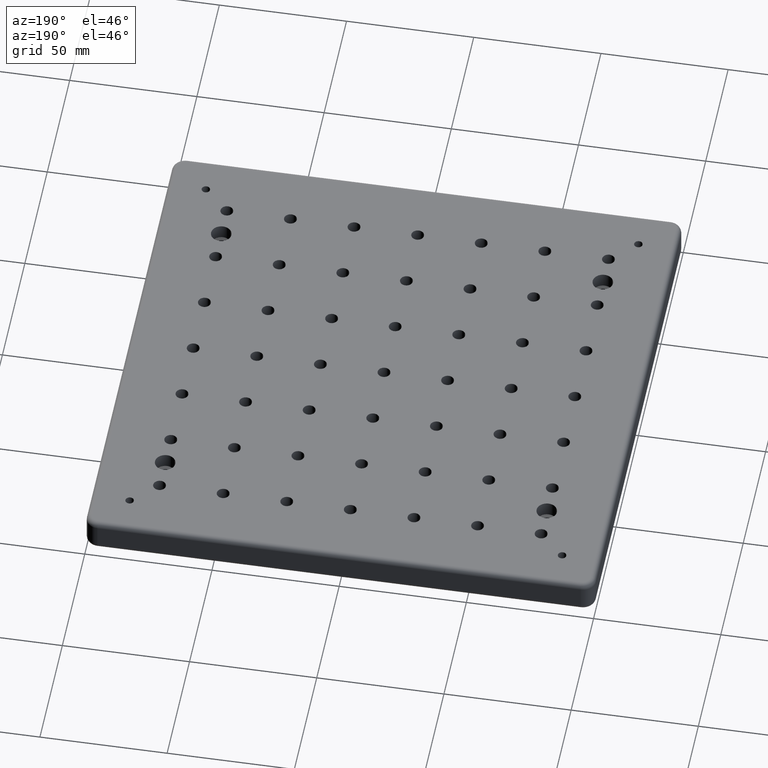
[diagram: clean part render]
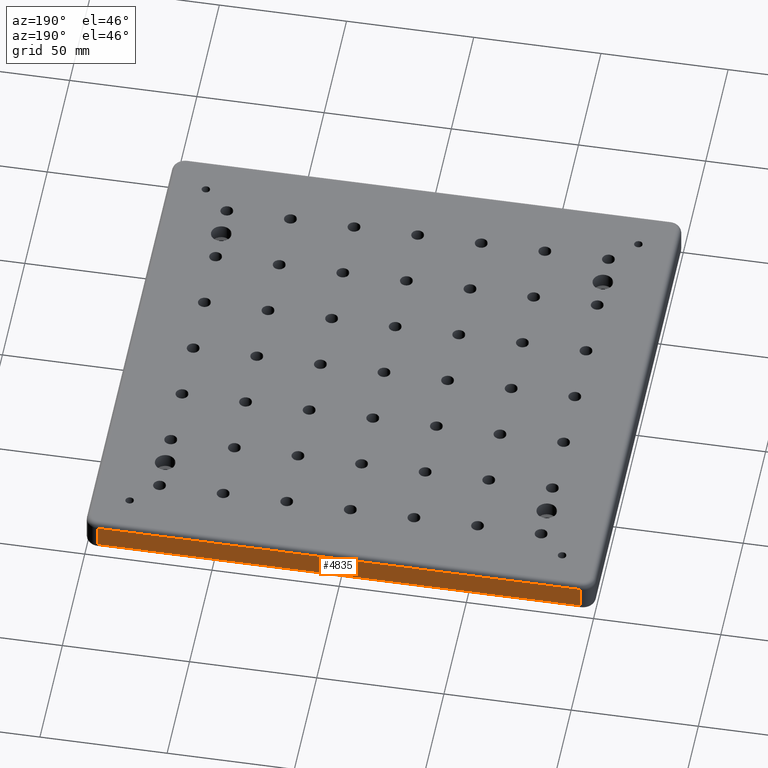
[diagram: same view with one face highlighted and labeled with its STEP entity id]
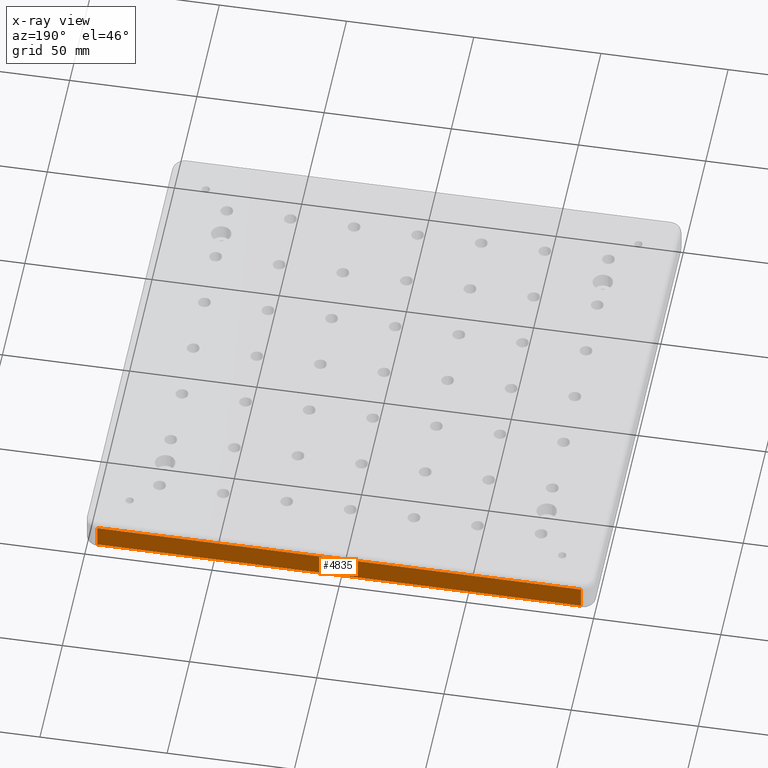
[diagram: x-ray of the same camera — body ghosted, the highlighted face saturated]
A machine part, auxiliary view. The second image highlights one B-rep face of the part: STEP entity #4835.
The next image is the same camera in x-ray: the body ghosted, the highlighted face saturated — about 0% of this face is hidden behind the body in this view.
In plain terms, the highlighted planar face has unit normal (-0, 1, 0).
Its self-contained STEP definition (entity closure, byte-faithful):
#8 = CARTESIAN_POINT ( 'NONE',  ( -95.00000000000011400, 100.0000000000000000, -2.000000000000003600 ) ) ;
#27 = ORIENTED_EDGE ( 'NONE', *, *, #3311, .T. ) ;
#239 = DIRECTION ( 'NONE',  ( -1.000000000000000000, -1.460819769243625700E-016, 0.0000000000000000000 ) ) ;
#613 = LINE ( 'NONE', #3022, #5096 ) ;
#766 = CARTESIAN_POINT ( 'NONE',  ( -95.00000000000011400, 100.0000000000000000, -11.00000000000000000 ) ) ;
#825 = CARTESIAN_POINT ( 'NONE',  ( 95.00000000000011400, 100.0000000000000300, -2.000000000000000000 ) ) ;
#941 = ORIENTED_EDGE ( 'NONE', *, *, #3897, .T. ) ;
#995 = VERTEX_POINT ( 'NONE', #3763 ) ;
#1043 = DIRECTION ( 'NONE',  ( 0.0000000000000000000, 0.0000000000000000000, 1.000000000000000000 ) ) ;
#1125 = EDGE_CURVE ( 'NONE', #995, #2400, #1996, .T. ) ;
#1137 = CARTESIAN_POINT ( 'NONE',  ( -95.00000000000011400, 100.0000000000000000, -11.00000000000000000 ) ) ;
#1164 = LINE ( 'NONE', #766, #1943 ) ;
#1287 = ORIENTED_EDGE ( 'NONE', *, *, #1125, .F. ) ;
#1381 = DIRECTION ( 'NONE',  ( 0.0000000000000000000, 0.0000000000000000000, 1.000000000000000000 ) ) ;
#1843 = CARTESIAN_POINT ( 'NONE',  ( 95.00000000000011400, 100.0000000000000100, -13.00000000000000000 ) ) ;
#1943 = VECTOR ( 'NONE', #2061, 1000.000000000000000 ) ;
#1988 = CARTESIAN_POINT ( 'NONE',  ( 95.00000000000011400, 100.0000000000000100, -2.000000000000003600 ) ) ;
#1996 = LINE ( 'NONE', #1843, #3134 ) ;
#2061 = DIRECTION ( 'NONE',  ( -1.000000000000000000, -1.460819769243625700E-016, 0.0000000000000000000 ) ) ;
#2198 = EDGE_LOOP ( 'NONE', ( #1287, #941, #4181, #27 ) ) ;
#2400 = VERTEX_POINT ( 'NONE', #1988 ) ;
#3022 = CARTESIAN_POINT ( 'NONE',  ( -95.00000000000011400, 100.0000000000000000, -13.00000000000000000 ) ) ;
#3086 = EDGE_CURVE ( 'NONE', #3254, #3360, #613, .T. ) ;
#3134 = VECTOR ( 'NONE', #1043, 1000.000000000000000 ) ;
#3254 = VERTEX_POINT ( 'NONE', #1137 ) ;
#3271 = FACE_OUTER_BOUND ( 'NONE', #2198, .T. ) ;
#3311 = EDGE_CURVE ( 'NONE', #3360, #2400, #4360, .T. ) ;
#3360 = VERTEX_POINT ( 'NONE', #8 ) ;
#3681 = VECTOR ( 'NONE', #4921, 1000.000000000000000 ) ;
#3763 = CARTESIAN_POINT ( 'NONE',  ( 95.00000000000011400, 100.0000000000000100, -11.00000000000000000 ) ) ;
#3897 = EDGE_CURVE ( 'NONE', #995, #3254, #1164, .T. ) ;
#3898 = CARTESIAN_POINT ( 'NONE',  ( -95.00000000000011400, 100.0000000000000000, -13.00000000000000000 ) ) ;
#3947 = PLANE ( 'NONE',  #4283 ) ;
#4181 = ORIENTED_EDGE ( 'NONE', *, *, #3086, .T. ) ;
#4283 = AXIS2_PLACEMENT_3D ( 'NONE', #3898, #5139, #239 ) ;
#4360 = LINE ( 'NONE', #825, #3681 ) ;
#4835 = ADVANCED_FACE ( 'NONE', ( #3271 ), #3947, .T. ) ;
#4921 = DIRECTION ( 'NONE',  ( 1.000000000000000000, 1.460819769243625700E-016, -0.0000000000000000000 ) ) ;
#5096 = VECTOR ( 'NONE', #1381, 1000.000000000000000 ) ;
#5139 = DIRECTION ( 'NONE',  ( -1.460819769243625700E-016, 1.000000000000000000, 0.0000000000000000000 ) ) ;